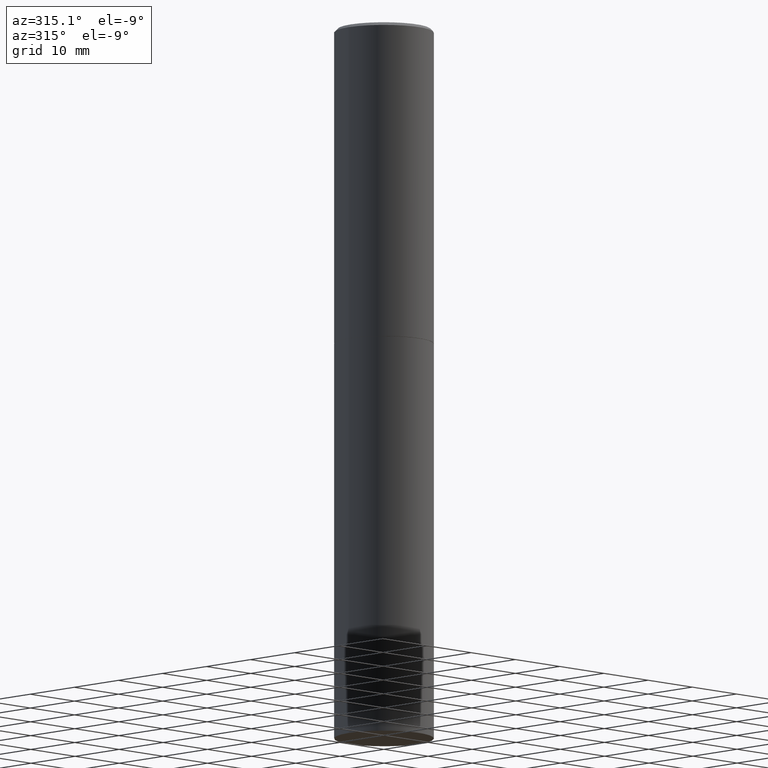
[diagram: clean part render]
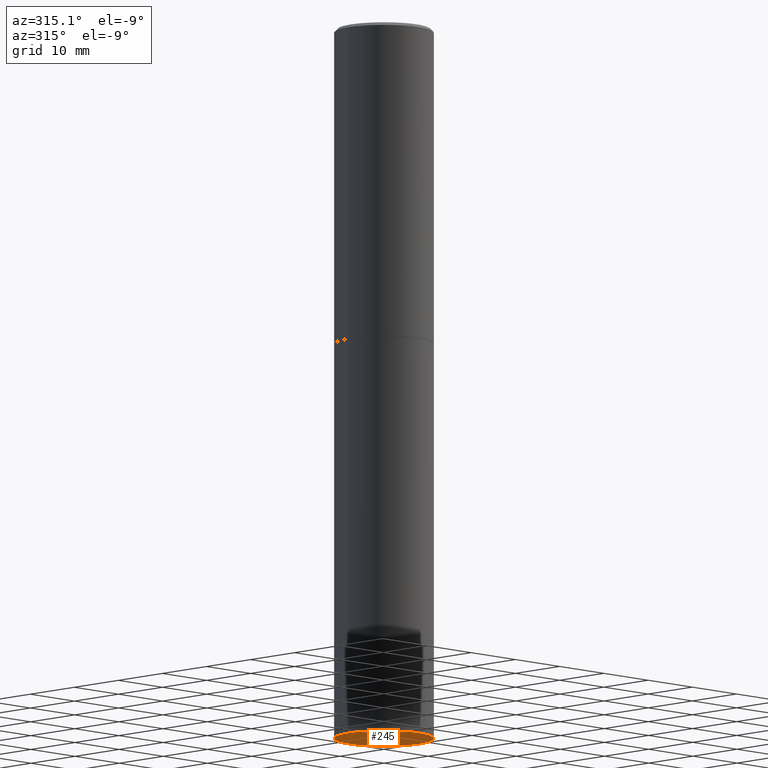
[diagram: same view with one face highlighted and labeled with its STEP entity id]
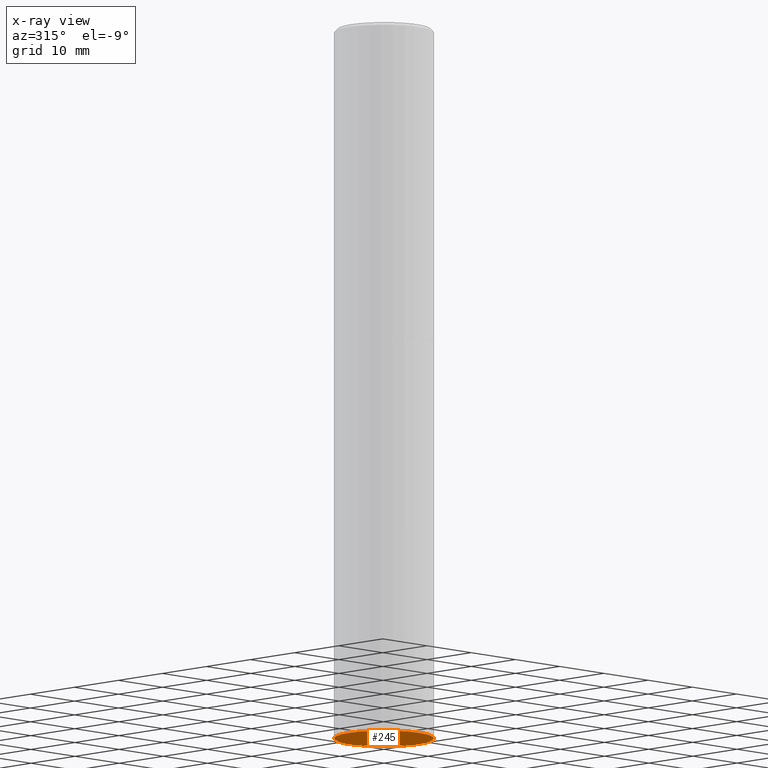
[diagram: x-ray of the same camera — body ghosted, the highlighted face saturated]
A machine part, auxiliary view. The second image highlights one B-rep face of the part: STEP entity #245.
The next image is the same camera in x-ray: the body ghosted, the highlighted face saturated — about 0% of this face is hidden behind the body in this view.
In plain terms, the highlighted planar face has unit normal (0, -0, -1).
Its self-contained STEP definition (entity closure, byte-faithful):
#2 = CARTESIAN_POINT ( 'NONE',  ( 0.3149500000000000077, -1.800731500508351534E-14, -4.527599999999999625 ) ) ;
#25 = VERTEX_POINT ( 'NONE', #137 ) ;
#53 = CARTESIAN_POINT ( 'NONE',  ( 1.107210456688382298E-28, -1.580803090974622389E-14, -4.527599999999999625 ) ) ;
#77 = EDGE_CURVE ( 'NONE', #265, #25, #340, .T. ) ;
#83 = DIRECTION ( 'NONE',  ( 1.000000000000000000, -6.982962677686269866E-15, 0.000000000000000000 ) ) ;
#111 = EDGE_CURVE ( 'NONE', #25, #265, #130, .T. ) ;
#130 = CIRCLE ( 'NONE', #221, 0.3149500000000000077 ) ;
#135 = AXIS2_PLACEMENT_3D ( 'NONE', #170, #140, #167 ) ;
#137 = CARTESIAN_POINT ( 'NONE',  ( -0.3149500000000000077, -9.171433798728249845E-15, -4.527599999999999625 ) ) ;
#140 = DIRECTION ( 'NONE',  ( 2.438088387897960049E-29, -3.491481338843145188E-15, -1.000000000000000000 ) ) ;
#141 = PLANE ( 'NONE',  #135 ) ;
#165 = DIRECTION ( 'NONE',  ( -2.445468806185136597E-29, 3.491481338843145583E-15, 1.000000000000000000 ) ) ;
#167 = DIRECTION ( 'NONE',  ( -1.000000000000000000, 6.982962677686265922E-15, -4.876176775795935793E-29 ) ) ;
#170 = CARTESIAN_POINT ( 'NONE',  ( 2.199284095337399917E-15, 0.3149499999999842426, -4.527600000000000513 ) ) ;
#182 = ORIENTED_EDGE ( 'NONE', *, *, #77, .F. ) ;
#184 = EDGE_LOOP ( 'NONE', ( #182, #353 ) ) ;
#221 = AXIS2_PLACEMENT_3D ( 'NONE', #333, #271, #83 ) ;
#223 = FACE_OUTER_BOUND ( 'NONE', #184, .T. ) ;
#244 = DIRECTION ( 'NONE',  ( 1.000000000000000000, -6.982962677686269866E-15, 0.000000000000000000 ) ) ;
#245 = ADVANCED_FACE ( 'NONE', ( #223 ), #141, .T. ) ;
#265 = VERTEX_POINT ( 'NONE', #2 ) ;
#271 = DIRECTION ( 'NONE',  ( -2.445468806185136597E-29, 3.491481338843145583E-15, 1.000000000000000000 ) ) ;
#312 = AXIS2_PLACEMENT_3D ( 'NONE', #53, #165, #244 ) ;
#333 = CARTESIAN_POINT ( 'NONE',  ( 1.107210456688382298E-28, -1.580803090974622389E-14, -4.527599999999999625 ) ) ;
#340 = CIRCLE ( 'NONE', #312, 0.3149500000000000077 ) ;
#353 = ORIENTED_EDGE ( 'NONE', *, *, #111, .F. ) ;